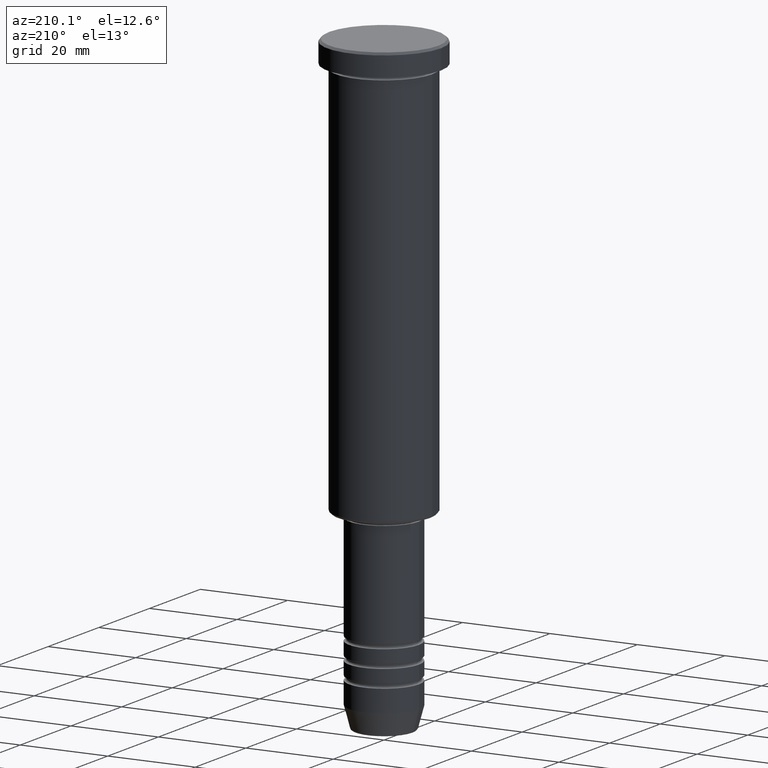
[diagram: clean part render]
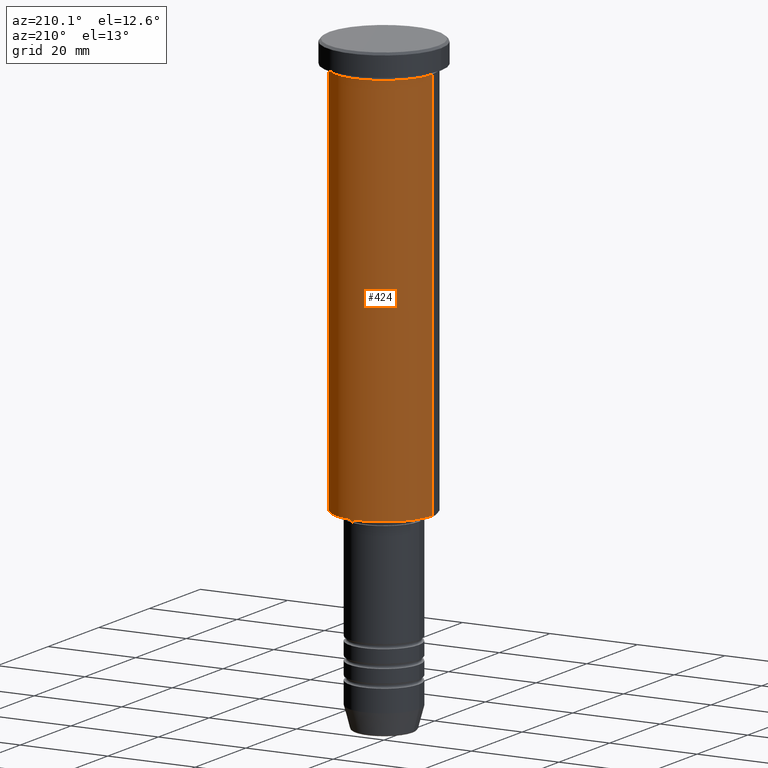
[diagram: same view with one face highlighted and labeled with its STEP entity id]
A machine part, auxiliary view. The second image highlights one B-rep face of the part: STEP entity #424.
In plain terms, the highlighted cylindrical surface (partial cylindrical patch) has radius 11 mm, axis along (-0, -0, 1).
Its self-contained STEP definition (entity closure, byte-faithful):
#33 = DIRECTION ( 'NONE',  ( -0.000000000000000000, -0.000000000000000000, 1.000000000000000000 ) ) ;
#75 = ORIENTED_EDGE ( 'NONE', *, *, #1176, .F. ) ;
#106 = EDGE_CURVE ( 'NONE', #515, #275, #722, .T. ) ;
#114 = CARTESIAN_POINT ( 'NONE',  ( 0.000000000000000000, 0.000000000000000000, -95.50000000000001421 ) ) ;
#157 = EDGE_CURVE ( 'NONE', #275, #673, #570, .T. ) ;
#166 = FACE_OUTER_BOUND ( 'NONE', #761, .T. ) ;
#192 = AXIS2_PLACEMENT_3D ( 'NONE', #114, #33, #770 ) ;
#220 = DIRECTION ( 'NONE',  ( 1.000000000000000000, 0.000000000000000000, 0.000000000000000000 ) ) ;
#224 = CARTESIAN_POINT ( 'NONE',  ( 11.00000000000000000, 0.000000000000000000, -95.50000000000001421 ) ) ;
#234 = ORIENTED_EDGE ( 'NONE', *, *, #106, .T. ) ;
#262 = CYLINDRICAL_SURFACE ( 'NONE', #781, 11.00000000000000000 ) ;
#275 = VERTEX_POINT ( 'NONE', #437 ) ;
#279 = DIRECTION ( 'NONE',  ( -0.000000000000000000, -0.000000000000000000, 1.000000000000000000 ) ) ;
#294 = DIRECTION ( 'NONE',  ( -0.000000000000000000, -0.000000000000000000, 1.000000000000000000 ) ) ;
#309 = AXIS2_PLACEMENT_3D ( 'NONE', #380, #294, #220 ) ;
#380 = CARTESIAN_POINT ( 'NONE',  ( 0.000000000000000000, 0.000000000000000000, -5.999999999999999112 ) ) ;
#424 = ADVANCED_FACE ( 'NONE', ( #166 ), #262, .T. ) ;
#437 = CARTESIAN_POINT ( 'NONE',  ( -11.00000000000000000, 1.347111479062088405E-15, -95.50000000000001421 ) ) ;
#515 = VERTEX_POINT ( 'NONE', #224 ) ;
#547 = ORIENTED_EDGE ( 'NONE', *, *, #157, .T. ) ;
#570 = LINE ( 'NONE', #1123, #1098 ) ;
#653 = EDGE_CURVE ( 'NONE', #1074, #673, #815, .T. ) ;
#657 = DIRECTION ( 'NONE',  ( -0.000000000000000000, -0.000000000000000000, 1.000000000000000000 ) ) ;
#673 = VERTEX_POINT ( 'NONE', #801 ) ;
#696 = DIRECTION ( 'NONE',  ( -0.000000000000000000, -0.000000000000000000, 1.000000000000000000 ) ) ;
#722 = CIRCLE ( 'NONE', #192, 11.00000000000000000 ) ;
#761 = EDGE_LOOP ( 'NONE', ( #234, #547, #1054, #75 ) ) ;
#770 = DIRECTION ( 'NONE',  ( -1.000000000000000000, 0.000000000000000000, 0.000000000000000000 ) ) ;
#772 = CARTESIAN_POINT ( 'NONE',  ( 11.00000000000000000, 0.000000000000000000, -5.999999999999999112 ) ) ;
#781 = AXIS2_PLACEMENT_3D ( 'NONE', #892, #279, #802 ) ;
#801 = CARTESIAN_POINT ( 'NONE',  ( -11.00000000000000000, 1.347111479062088405E-15, -5.999999999999999112 ) ) ;
#802 = DIRECTION ( 'NONE',  ( 1.000000000000000000, 0.000000000000000000, 0.000000000000000000 ) ) ;
#815 = CIRCLE ( 'NONE', #309, 11.00000000000000000 ) ;
#872 = CARTESIAN_POINT ( 'NONE',  ( 11.00000000000000000, 0.000000000000000000, 0.000000000000000000 ) ) ;
#892 = CARTESIAN_POINT ( 'NONE',  ( 0.000000000000000000, 0.000000000000000000, 0.000000000000000000 ) ) ;
#908 = VECTOR ( 'NONE', #696, 1000.000000000000000 ) ;
#1054 = ORIENTED_EDGE ( 'NONE', *, *, #653, .F. ) ;
#1066 = LINE ( 'NONE', #872, #908 ) ;
#1074 = VERTEX_POINT ( 'NONE', #772 ) ;
#1098 = VECTOR ( 'NONE', #657, 1000.000000000000000 ) ;
#1123 = CARTESIAN_POINT ( 'NONE',  ( -11.00000000000000000, 1.347111479062088405E-15, 0.000000000000000000 ) ) ;
#1176 = EDGE_CURVE ( 'NONE', #515, #1074, #1066, .T. ) ;